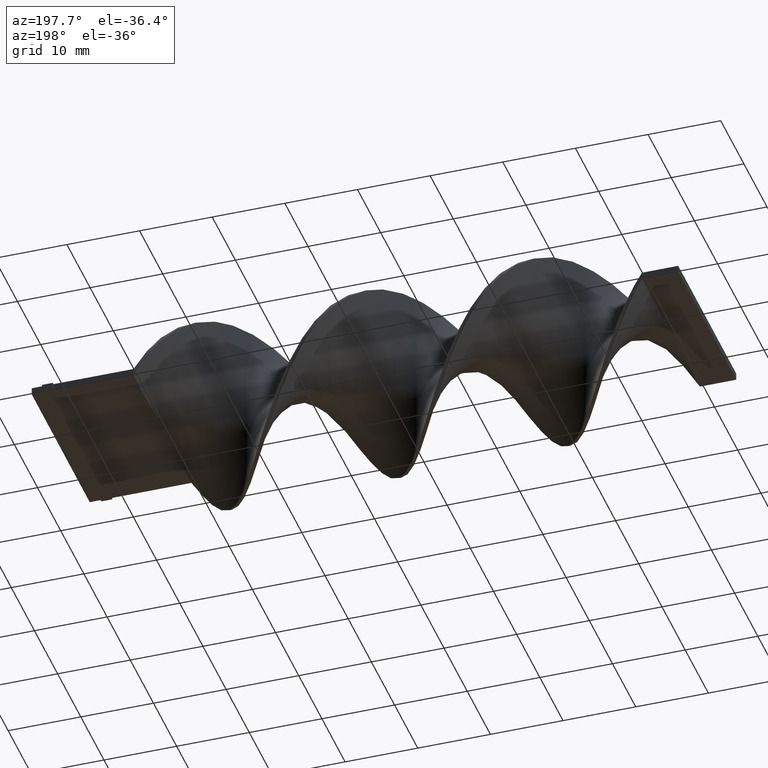
[diagram: clean part render]
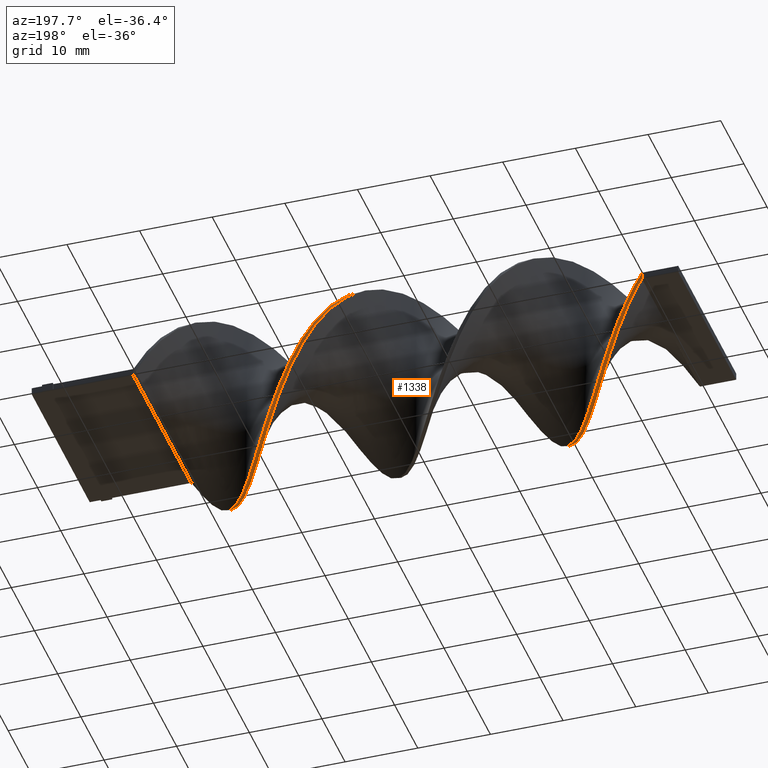
[diagram: same view with one face highlighted and labeled with its STEP entity id]
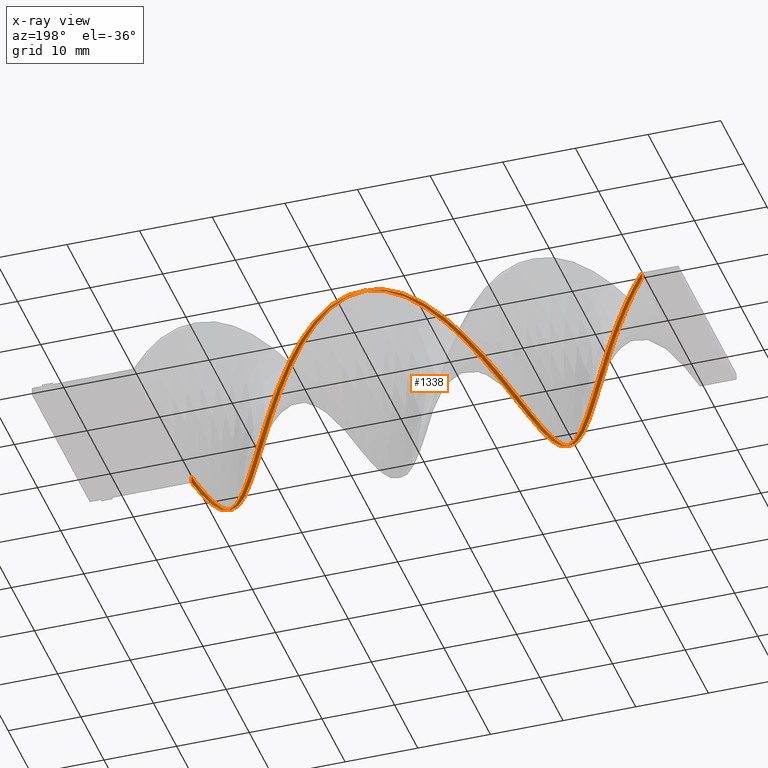
[diagram: x-ray of the same camera — body ghosted, the highlighted face saturated]
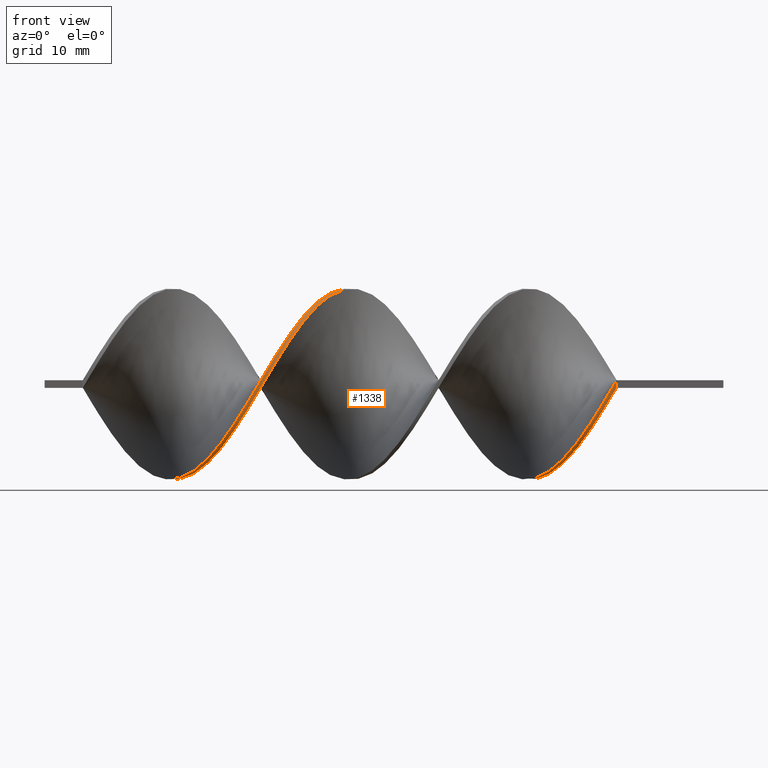
[diagram: same view with one face highlighted and labeled with its STEP entity id]
A machine part, auxiliary view. The second image highlights one B-rep face of the part: STEP entity #1338.
The next image is the same camera in x-ray: the body ghosted, the highlighted face saturated — about 9% of this face is hidden behind the body in this view.
A second angle (front view) of the same face is appended — the face is thin or edge-on in the first view.
In plain terms, the highlighted face is a freeform B-spline surface patch.
Its self-contained STEP definition (entity closure, byte-faithful):
#5 = CARTESIAN_POINT ( 'NONE',  ( -13.99999999999999467, -12.50000000000000178, -0.5000000000000000000 ) ) ;
#9 = CARTESIAN_POINT ( 'NONE',  ( -52.58974358974357699, -5.405725462660107006, 11.38356088229227048 ) ) ;
#18 = CARTESIAN_POINT ( 'NONE',  ( -18.48717948717948545, -10.64897370504629137, -6.738448275956367972 ) ) ;
#26 = CARTESIAN_POINT ( 'NONE',  ( -21.17948717948717530, -7.512301267086279211, -10.00326595030512777 ) ) ;
#35 = CARTESIAN_POINT ( 'NONE',  ( -66.94871794871792758, -8.726917657472039735, -9.091107431892410773 ) ) ;
#40 = CARTESIAN_POINT ( 'NONE',  ( -21.17948717948717530, -6.689317401192623080, -10.57133069703628259 ) ) ;
#43 = CARTESIAN_POINT ( 'NONE',  ( -49.00000000000000711, 0.5036723384328417596, 12.59180846082103855 ) ) ;
#49 = CARTESIAN_POINT ( 'NONE',  ( -24.76923076923076650, -1.010354066142515217, -12.46912926635333640 ) ) ;
#51 = CARTESIAN_POINT ( 'NONE',  ( -75.92307692307691980, 5.405725462660111447, -11.38356088229226870 ) ) ;
#56 = CARTESIAN_POINT ( 'NONE',  ( -55.28205128205128460, -9.687945681259160224, 7.914777853924392481 ) ) ;
#58 = CARTESIAN_POINT ( 'NONE',  ( -83.10256410256410220, 12.43928900838886875, -2.017774790278262564 ) ) ;
#63 = CARTESIAN_POINT ( 'NONE',  ( -22.07692307692307665, -5.405725462660116776, -11.38356088229226870 ) ) ;
#64 = CARTESIAN_POINT ( 'NONE',  ( -49.00000000000000000, -0.5036723384328410935, 12.59180846082103855 ) ) ;
#66 = CARTESIAN_POINT ( 'NONE',  ( -73.23076923076922640, 1.010354066142507001, -12.46912926635333640 ) ) ;
#67 = CARTESIAN_POINT ( 'NONE',  ( -57.07692307692306599, -11.30056190668700644, 5.366311637720509786 ) ) ;
#74 = CARTESIAN_POINT ( 'NONE',  ( -34.64102564102564230, 11.95215010832772684, -3.994174999484638722 ) ) ;
#83 = CARTESIAN_POINT ( 'NONE',  ( -60.66666666666665719, -12.50000000000000178, -0.5000000000000000000 ) ) ;
#90 = CARTESIAN_POINT ( 'NONE',  ( -46.30769230769229949, 4.900069209374405155, 11.51040059004641591 ) ) ;
#91 = CARTESIAN_POINT ( 'NONE',  ( -49.89743589743589069, -2.003062940240558198, 12.34859258609801635 ) ) ;
#96 = CARTESIAN_POINT ( 'NONE',  ( -67.84615384615385381, -7.512301267086279211, -10.00326595030512777 ) ) ;
#102 = CARTESIAN_POINT ( 'NONE',  ( -65.15384615384614619, -10.07673670631161045, -7.567476692410683548 ) ) ;
#106 = CARTESIAN_POINT ( 'NONE',  ( -43.61538461538461320, 8.726917657472037959, 9.091107431892408997 ) ) ;
#111 = CARTESIAN_POINT ( 'NONE',  ( -23.87179487179487225, -3.502453542048291624, -12.10537671137499238 ) ) ;
#124 = CARTESIAN_POINT ( 'NONE',  ( -13.99999999999999467, -12.50000000000000178, -0.5000000000000000000 ) ) ;
#126 = CARTESIAN_POINT ( 'NONE',  ( -47.20512820512820440, 3.502453542048287627, 12.10537671137499238 ) ) ;
#136 = CARTESIAN_POINT ( 'NONE',  ( -82.20512820512820440, 12.25643054996942816, -2.505974894881450421 ) ) ;
#142 = CARTESIAN_POINT ( 'NONE',  ( -34.64102564102564230, 11.59494076297487197, -4.936058634336743189 ) ) ;
#154 = CARTESIAN_POINT ( 'NONE',  ( -38.23076923076921929, 12.56071099161113303, 1.017774790278253905 ) ) ;
#159 = CARTESIAN_POINT ( 'NONE',  ( -36.43589743589743080, 12.56071099161113125, -1.017774790278262564 ) ) ;
#161 = CARTESIAN_POINT ( 'NONE',  ( -44.51282051282050389, 7.512301267086275658, 10.00326595030512777 ) ) ;
#164 = CARTESIAN_POINT ( 'NONE',  ( -17.58974358974358410, -10.83583873464324299, -6.251767663373711592 ) ) ;
#167 = CARTESIAN_POINT ( 'NONE',  ( -37.33333333333332860, 12.49999999999999822, 0.4999999999999985012 ) ) ;
#169 = LINE ( 'NONE', #183, #856 ) ;
#174 = CARTESIAN_POINT ( 'NONE',  ( -48.10256410256409509, 1.010354066142515661, 12.46912926635333818 ) ) ;
#178 = CARTESIAN_POINT ( 'NONE',  ( -18.48717948717948545, -10.07673670631161045, -7.567476692410683548 ) ) ;
#180 = CARTESIAN_POINT ( 'NONE',  ( -70.53846153846153300, -2.524380470717866309, -12.34645007188563959 ) ) ;
#183 = CARTESIAN_POINT ( 'NONE',  ( -13.99999999999999467, -12.50000000000000178, 0.5000000000000000000 ) ) ;
#184 = CARTESIAN_POINT ( 'NONE',  ( -78.61538461538461320, 9.687945681259156672, -7.914777853924392481 ) ) ;
#186 = CARTESIAN_POINT ( 'NONE',  ( -30.15384615384614975, 7.512301267086272993, -10.00326595030512955 ) ) ;
#194 = CARTESIAN_POINT ( 'NONE',  ( -45.41025641025640880, 5.405725462660119440, 11.38356088229226515 ) ) ;
#203 = VERTEX_POINT ( 'NONE', #1112 ) ;
#204 = CARTESIAN_POINT ( 'NONE',  ( -77.71794871794872961, 8.726917657472030854, -9.091107431892414326 ) ) ;
#208 = CARTESIAN_POINT ( 'NONE',  ( -48.10256410256409509, 2.003062940240569745, 12.34859258609801280 ) ) ;
#211 = CARTESIAN_POINT ( 'NONE',  ( -46.30769230769229949, 3.965052966688989322, 11.86500547708895148 ) ) ;
#218 = CARTESIAN_POINT ( 'NONE',  ( -29.25641025641025550, 5.405725462660110558, -11.38356088229227048 ) ) ;
#222 = CARTESIAN_POINT ( 'NONE',  ( -33.74358974358973740, 11.30056190668700644, -5.366311637720503569 ) ) ;
#225 = CARTESIAN_POINT ( 'NONE',  ( -79.51282051282051100, 10.64897370504628604, -6.738448275956368860 ) ) ;
#228 = CARTESIAN_POINT ( 'NONE',  ( -37.33333333333332860, 12.49999999999999822, -0.5000000000000015543 ) ) ;
#235 = CARTESIAN_POINT ( 'NONE',  ( -53.48717948717948900, -6.689317401192618640, 10.57133069703628614 ) ) ;
#242 = CARTESIAN_POINT ( 'NONE',  ( -49.89743589743589069, -1.010354066142503893, 12.46912926635333818 ) ) ;
#249 = CARTESIAN_POINT ( 'NONE',  ( -41.82051282051281760, 10.64897370504628960, 6.738448275956367084 ) ) ;
#257 = CARTESIAN_POINT ( 'NONE',  ( -84.00000000000000000, 12.49999999999999822, 0.4999999999999985012 ) ) ;
#266 = CARTESIAN_POINT ( 'NONE',  ( -22.07692307692307665, -6.297684876700518686, -10.91542446871784477 ) ) ;
#272 = CARTESIAN_POINT ( 'NONE',  ( -83.10256410256410220, 12.43928900838886875, -2.017774790278262564 ) ) ;
#274 = CARTESIAN_POINT ( 'NONE',  ( -43.61538461538461320, 8.726917657472037959, 9.091107431892407220 ) ) ;
#278 = CARTESIAN_POINT ( 'NONE',  ( -57.07692307692306599, -11.30056190668700644, 5.366311637720509786 ) ) ;
#280 = CARTESIAN_POINT ( 'NONE',  ( -75.92307692307690559, 5.405725462660110558, -11.38356088229227048 ) ) ;
#282 = CARTESIAN_POINT ( 'NONE',  ( -36.43589743589743080, 12.43928900838886875, -2.017774790278262564 ) ) ;
#286 = CARTESIAN_POINT ( 'NONE',  ( -22.97435897435896734, -3.965052966688991098, -11.86500547708895148 ) ) ;
#288 = CARTESIAN_POINT ( 'NONE',  ( -82.20512820512820440, 12.01711488568186859, -3.476916712307501989 ) ) ;
#294 = CARTESIAN_POINT ( 'NONE',  ( -40.02564102564101489, 11.59494076297487375, 4.936058634336734308 ) ) ;
#297 = CARTESIAN_POINT ( 'NONE',  ( -69.64102564102563520, -4.900069209374406931, -11.51040059004641591 ) ) ;
#304 = CARTESIAN_POINT ( 'NONE',  ( -69.64102564102563520, -3.965052966688991098, -11.86500547708895148 ) ) ;
#307 = CARTESIAN_POINT ( 'NONE',  ( -74.12820512820512420, 2.524380470717861424, -12.34645007188564136 ) ) ;
#310 = CARTESIAN_POINT ( 'NONE',  ( -38.23076923076921929, 12.43928900838886875, 2.017774790278253683 ) ) ;
#315 = CARTESIAN_POINT ( 'NONE',  ( -57.97435897435897090, -11.95215010832773039, 3.994174999484640498 ) ) ;
#321 = CARTESIAN_POINT ( 'NONE',  ( -72.33333333333332860, 0.5036723384328388731, -12.59180846082103855 ) ) ;
#332 = CARTESIAN_POINT ( 'NONE',  ( -62.46153846153845990, -12.01711488568187214, -3.476916712307497548 ) ) ;
#339 = CARTESIAN_POINT ( 'NONE',  ( -28.35897435897435059, 3.965052966688984437, -11.86500547708895326 ) ) ;
#342 = CARTESIAN_POINT ( 'NONE',  ( -71.43589743589743080, -1.010354066142515217, -12.46912926635333640 ) ) ;
#343 = EDGE_CURVE ( 'NONE', #203, #1343, #398, .T. ) ;
#347 = CARTESIAN_POINT ( 'NONE',  ( -71.43589743589743080, -2.003062940240569301, -12.34859258609801458 ) ) ;
#351 = CARTESIAN_POINT ( 'NONE',  ( -52.58974358974357699, -6.297684876700514245, 10.91542446871784477 ) ) ;
#358 = CARTESIAN_POINT ( 'NONE',  ( -31.94871794871793824, 9.024823023018361923, -8.663288602095494895 ) ) ;
#362 = CARTESIAN_POINT ( 'NONE',  ( -39.12820512820512420, 12.25643054996942816, 2.505974894881441539 ) ) ;
#369 = CARTESIAN_POINT ( 'NONE',  ( -21.17948717948717530, -7.512301267086279211, -10.00326595030512777 ) ) ;
#375 = CARTESIAN_POINT ( 'NONE',  ( -51.69230769230769340, -3.965052966688988434, 11.86500547708895326 ) ) ;
#389 = CARTESIAN_POINT ( 'NONE',  ( -80.41025641025640880, 10.83583873464323766, -6.251767663373713368 ) ) ;
#391 = CARTESIAN_POINT ( 'NONE',  ( -58.87179487179486159, -12.01711488568187036, 3.476916712307509094 ) ) ;
#398 = B_SPLINE_CURVE_WITH_KNOTS ( 'NONE', 3,
 ( #545, #884, #1390, #1156 ),
 .UNSPECIFIED., .F., .F.,
 ( 4, 4 ),
 ( 0.000000000000000000, 1.000000000000000000 ),
 .UNSPECIFIED. ) ;
#403 = CARTESIAN_POINT ( 'NONE',  ( -30.15384615384614975, 6.689317401192616863, -10.57133069703628436 ) ) ;
#411 = CARTESIAN_POINT ( 'NONE',  ( -50.79487179487178139, -2.524380470717860536, 12.34645007188564136 ) ) ;
#415 = CARTESIAN_POINT ( 'NONE',  ( -39.12820512820512420, 12.01711488568187214, 3.476916712307494439 ) ) ;
#418 = CARTESIAN_POINT ( 'NONE',  ( -26.56410256410255855, 1.010354066142507001, -12.46912926635333640 ) ) ;
#427 = CARTESIAN_POINT ( 'NONE',  ( -67.84615384615385381, -6.689317401192623080, -10.57133069703628259 ) ) ;
#433 = ORIENTED_EDGE ( 'NONE', *, *, #1361, .F. ) ;
#437 = CARTESIAN_POINT ( 'NONE',  ( -61.56410256410256920, -12.43928900838887230, -2.017774790278256791 ) ) ;
#442 = CARTESIAN_POINT ( 'NONE',  ( -20.28205128205128105, -7.972909339725130273, -9.759100511780298248 ) ) ;
#450 = CARTESIAN_POINT ( 'NONE',  ( -46.30769230769229949, 3.965052966688989322, 11.86500547708895148 ) ) ;
#455 = CARTESIAN_POINT ( 'NONE',  ( -37.33333333333332860, 12.49999999999999822, 0.4999999999999985012 ) ) ;
#465 = CARTESIAN_POINT ( 'NONE',  ( -57.97435897435897090, -11.95215010832773039, 3.994174999484640498 ) ) ;
#470 = CARTESIAN_POINT ( 'NONE',  ( -66.94871794871794179, -8.726917657472039735, -9.091107431892412549 ) ) ;
#474 = CARTESIAN_POINT ( 'NONE',  ( -31.05128205128205465, 8.726917657472030854, -9.091107431892414326 ) ) ;
#479 = CARTESIAN_POINT ( 'NONE',  ( -47.20512820512820440, 3.502453542048287183, 12.10537671137499238 ) ) ;
#481 = ORIENTED_EDGE ( 'NONE', *, *, #343, .F. ) ;
#484 = CARTESIAN_POINT ( 'NONE',  ( -54.38461538461537970, -8.726917657472029077, 9.091107431892417878 ) ) ;
#489 = CARTESIAN_POINT ( 'NONE',  ( -57.07692307692306599, -10.83583873464323766, 6.251767663373719586 ) ) ;
#492 = CARTESIAN_POINT ( 'NONE',  ( -59.76923076923077360, -12.56071099161113658, 1.017774790278264119 ) ) ;
#495 = CARTESIAN_POINT ( 'NONE',  ( -17.58974358974358410, -11.30056190668700999, -5.366311637720501793 ) ) ;
#496 = ORIENTED_EDGE ( 'NONE', *, *, #1543, .T. ) ;
#501 = CARTESIAN_POINT ( 'NONE',  ( -61.56410256410256920, -12.56071099161113480, -1.017774790278256569 ) ) ;
#512 = CARTESIAN_POINT ( 'NONE',  ( -14.89743589743589247, -12.43928900838887230, -2.017774790278256791 ) ) ;
#515 = CARTESIAN_POINT ( 'NONE',  ( -56.17948717948717530, -10.07673670631160867, 7.567476692410687100 ) ) ;
#524 = CARTESIAN_POINT ( 'NONE',  ( -63.35897435897434349, -11.95215010832773217, -3.994174999484634281 ) ) ;
#533 = CARTESIAN_POINT ( 'NONE',  ( -25.66666666666666785, -0.5036723384328442021, -12.59180846082103855 ) ) ;
#537 = CARTESIAN_POINT ( 'NONE',  ( -56.17948717948717530, -10.64897370504628960, 6.738448275956370637 ) ) ;
#542 = CARTESIAN_POINT ( 'NONE',  ( -40.02564102564101489, 11.95215010832772862, 3.994174999484630284 ) ) ;
#545 = CARTESIAN_POINT ( 'NONE',  ( -84.00000000000000000, 12.49999999999999822, 0.4999999999999985012 ) ) ;
#546 = CARTESIAN_POINT ( 'NONE',  ( -72.33333333333332860, 0.5036723384328388731, -12.59180846082103855 ) ) ;
#550 = CARTESIAN_POINT ( 'NONE',  ( -31.05128205128205465, 7.972909339725120503, -9.759100511780301801 ) ) ;
#554 = CARTESIAN_POINT ( 'NONE',  ( -29.25641025641025550, 6.297684876700515133, -10.91542446871784655 ) ) ;
#560 = CARTESIAN_POINT ( 'NONE',  ( -66.05128205128204399, -9.024823023018369028, -8.663288602095489566 ) ) ;
#562 = CARTESIAN_POINT ( 'NONE',  ( -84.00000000000000000, 12.49999999999999822, -0.5000000000000015543 ) ) ;
#566 = CARTESIAN_POINT ( 'NONE',  ( -22.97435897435896734, -3.965052966688991098, -11.86500547708895148 ) ) ;
#569 = CARTESIAN_POINT ( 'NONE',  ( -25.66666666666666785, 0.5036723384328388731, -12.59180846082103855 ) ) ;
#575 = CARTESIAN_POINT ( 'NONE',  ( -40.92307692307691980, 10.83583873464323943, 6.251767663373710704 ) ) ;
#582 = CARTESIAN_POINT ( 'NONE',  ( -39.12820512820512420, 12.01711488568187214, 3.476916712307494439 ) ) ;
#587 = CARTESIAN_POINT ( 'NONE',  ( -56.17948717948717530, -10.07673670631160689, 7.567476692410687100 ) ) ;
#590 = CARTESIAN_POINT ( 'NONE',  ( -64.25641025641024839, -10.83583873464324299, -6.251767663373711592 ) ) ;
#593 = CARTESIAN_POINT ( 'NONE',  ( -81.30769230769232081, 11.95215010832772684, -3.994174999484638722 ) ) ;
#596 = CARTESIAN_POINT ( 'NONE',  ( -70.53846153846153300, -3.502453542048291624, -12.10537671137499238 ) ) ;
#599 = CARTESIAN_POINT ( 'NONE',  ( -27.46153846153845990, 3.502453542048287183, -12.10537671137499238 ) ) ;
#605 = CARTESIAN_POINT ( 'NONE',  ( -68.74358974358973740, -6.297684876700517798, -10.91542446871784655 ) ) ;
#608 = CARTESIAN_POINT ( 'NONE',  ( -49.00000000000000711, -0.5036723384328410935, 12.59180846082103855 ) ) ;
#612 = CARTESIAN_POINT ( 'NONE',  ( -40.92307692307691980, 11.30056190668700822, 5.366311637720500904 ) ) ;
#619 = CARTESIAN_POINT ( 'NONE',  ( -35.53846153846153300, 12.01711488568186859, -3.476916712307501989 ) ) ;
#627 = ORIENTED_EDGE ( 'NONE', *, *, #1241, .F. ) ;
#636 = CARTESIAN_POINT ( 'NONE',  ( -28.35897435897435059, 3.965052966688984437, -11.86500547708895326 ) ) ;
#644 = CARTESIAN_POINT ( 'NONE',  ( -17.58974358974358410, -11.30056190668700999, -5.366311637720501793 ) ) ;
#652 = CARTESIAN_POINT ( 'NONE',  ( -40.92307692307691980, 11.30056190668700822, 5.366311637720500904 ) ) ;
#657 = CARTESIAN_POINT ( 'NONE',  ( -13.99999999999999467, -12.50000000000000178, 0.5000000000000000000 ) ) ;
#658 = CARTESIAN_POINT ( 'NONE',  ( -79.51282051282051100, 10.07673670631160334, -7.567476692410685324 ) ) ;
#660 = CARTESIAN_POINT ( 'NONE',  ( -61.56410256410256920, -12.56071099161113658, -1.017774790278256791 ) ) ;
#666 = CARTESIAN_POINT ( 'NONE',  ( -64.25641025641024839, -10.83583873464324299, -6.251767663373711592 ) ) ;
#669 = CARTESIAN_POINT ( 'NONE',  ( -42.71794871794871540, 9.687945681259162001, 7.914777853924385376 ) ) ;
#671 = CARTESIAN_POINT ( 'NONE',  ( -19.38461538461537970, -9.024823023018369028, -8.663288602095489566 ) ) ;
#673 = CARTESIAN_POINT ( 'NONE',  ( -75.92307692307690559, 6.297684876700515133, -10.91542446871784655 ) ) ;
#675 = DIRECTION ( 'NONE',  ( -0.000000000000000000, -0.000000000000000000, -1.000000000000000000 ) ) ;
#679 = CARTESIAN_POINT ( 'NONE',  ( -59.76923076923076650, -12.56071099161113480, 1.017774790278263897 ) ) ;
#685 = CARTESIAN_POINT ( 'NONE',  ( -20.28205128205128105, -7.972909339725129385, -9.759100511780298248 ) ) ;
#688 = CARTESIAN_POINT ( 'NONE',  ( -23.87179487179487225, -2.524380470717866309, -12.34645007188563959 ) ) ;
#692 = CARTESIAN_POINT ( 'NONE',  ( -47.20512820512820440, 2.524380470717861868, 12.34645007188564136 ) ) ;
#693 = CARTESIAN_POINT ( 'NONE',  ( -31.94871794871793824, 9.687945681259156672, -7.914777853924392481 ) ) ;
#697 = CARTESIAN_POINT ( 'NONE',  ( -76.82051282051281760, 7.512301267086272993, -10.00326595030512955 ) ) ;
#707 = CARTESIAN_POINT ( 'NONE',  ( -81.30769230769233502, 11.95215010832772684, -3.994174999484638722 ) ) ;
#711 = CARTESIAN_POINT ( 'NONE',  ( -49.00000000000000000, 0.5036723384328417596, 12.59180846082103855 ) ) ;
#714 = CARTESIAN_POINT ( 'NONE',  ( -31.94871794871793824, 9.687945681259156672, -7.914777853924392481 ) ) ;
#718 = CARTESIAN_POINT ( 'NONE',  ( -36.43589743589743080, 12.43928900838886875, -2.017774790278262564 ) ) ;
#721 = CARTESIAN_POINT ( 'NONE',  ( -58.87179487179486159, -12.25643054996942993, 2.505974894881457526 ) ) ;
#728 = CARTESIAN_POINT ( 'NONE',  ( -38.23076923076921929, 12.56071099161113125, 1.017774790278253905 ) ) ;
#733 = CARTESIAN_POINT ( 'NONE',  ( -59.76923076923076650, -12.43928900838887230, 2.017774790278263897 ) ) ;
#740 = CARTESIAN_POINT ( 'NONE',  ( -31.05128205128205110, 7.972909339725121391, -9.759100511780301801 ) ) ;
#753 = CARTESIAN_POINT ( 'NONE',  ( -54.38461538461537970, -7.972909339725118727, 9.759100511780305354 ) ) ;
#760 = CARTESIAN_POINT ( 'NONE',  ( -75.02564102564102200, 3.965052966688984437, -11.86500547708895326 ) ) ;
#762 = CARTESIAN_POINT ( 'NONE',  ( -13.99999999999999467, -12.50000000000000178, 0.5000000000000000000 ) ) ;
#771 = CARTESIAN_POINT ( 'NONE',  ( -60.66666666666665719, -12.50000000000000178, 0.5000000000000000000 ) ) ;
#780 = CARTESIAN_POINT ( 'NONE',  ( -29.25641025641025550, 5.405725462660111447, -11.38356088229226870 ) ) ;
#786 = CARTESIAN_POINT ( 'NONE',  ( -51.69230769230769340, -4.900069209374404267, 11.51040059004641769 ) ) ;
#789 = CARTESIAN_POINT ( 'NONE',  ( -33.74358974358973740, 10.83583873464323766, -6.251767663373713368 ) ) ;
#794 = CARTESIAN_POINT ( 'NONE',  ( -32.84615384615384670, 10.64897370504628604, -6.738448275956368860 ) ) ;
#800 = CARTESIAN_POINT ( 'NONE',  ( -54.38461538461537970, -8.726917657472029077, 9.091107431892417878 ) ) ;
#810 = CARTESIAN_POINT ( 'NONE',  ( -40.92307692307691980, 10.83583873464323943, 6.251767663373710704 ) ) ;
#812 = CARTESIAN_POINT ( 'NONE',  ( -71.43589743589743080, -2.003062940240569301, -12.34859258609801458 ) ) ;
#814 = CARTESIAN_POINT ( 'NONE',  ( -74.12820512820512420, 3.502453542048287183, -12.10537671137499238 ) ) ;
#815 = CARTESIAN_POINT ( 'NONE',  ( -66.94871794871794179, -7.972909339725130273, -9.759100511780298248 ) ) ;
#821 = CARTESIAN_POINT ( 'NONE',  ( -73.23076923076922640, 2.003062940240561307, -12.34859258609801458 ) ) ;
#833 = CARTESIAN_POINT ( 'NONE',  ( -75.92307692307691980, 6.297684876700515133, -10.91542446871784477 ) ) ;
#839 = CARTESIAN_POINT ( 'NONE',  ( -69.64102564102563520, -4.900069209374406931, -11.51040059004641591 ) ) ;
#841 = CARTESIAN_POINT ( 'NONE',  ( -25.66666666666666785, 0.5036723384328388731, -12.59180846082103855 ) ) ;
#844 = CARTESIAN_POINT ( 'NONE',  ( -22.97435897435896734, -4.900069209374406931, -11.51040059004641591 ) ) ;
#845 = CARTESIAN_POINT ( 'NONE',  ( -26.56410256410255855, 2.003062940240561307, -12.34859258609801458 ) ) ;
#852 = CARTESIAN_POINT ( 'NONE',  ( -33.74358974358973740, 10.83583873464323766, -6.251767663373713368 ) ) ;
#855 = CARTESIAN_POINT ( 'NONE',  ( -51.69230769230769340, -3.965052966688988434, 11.86500547708895326 ) ) ;
#856 = VECTOR ( 'NONE', #675, 1000.000000000000000 ) ;
#860 = CARTESIAN_POINT ( 'NONE',  ( -25.66666666666666785, -0.5036723384328442021, -12.59180846082103855 ) ) ;
#865 = CARTESIAN_POINT ( 'NONE',  ( -20.28205128205128105, -8.726917657472039735, -9.091107431892412549 ) ) ;
#877 = CARTESIAN_POINT ( 'NONE',  ( -18.48717948717948545, -10.07673670631160867, -7.567476692410683548 ) ) ;
#879 = CARTESIAN_POINT ( 'NONE',  ( -82.20512820512820440, 12.01711488568186859, -3.476916712307501989 ) ) ;
#881 = CARTESIAN_POINT ( 'NONE',  ( -46.30769230769229949, 4.900069209374405155, 11.51040059004641591 ) ) ;
#884 = CARTESIAN_POINT ( 'NONE',  ( -84.00000000000000000, 12.49999999999999822, 0.1666666666666651586 ) ) ;
#890 = CARTESIAN_POINT ( 'NONE',  ( -31.94871794871793824, 9.024823023018361923, -8.663288602095494895 ) ) ;
#897 = CARTESIAN_POINT ( 'NONE',  ( -22.97435897435896734, -4.900069209374406931, -11.51040059004641591 ) ) ;
#902 = CARTESIAN_POINT ( 'NONE',  ( -42.71794871794871540, 9.024823023018367252, 8.663288602095487789 ) ) ;
#906 = CARTESIAN_POINT ( 'NONE',  ( -16.69230769230769340, -11.95215010832773217, -3.994174999484634281 ) ) ;
#912 = CARTESIAN_POINT ( 'NONE',  ( -74.12820512820510999, 3.502453542048286739, -12.10537671137499238 ) ) ;
#914 = EDGE_LOOP ( 'NONE', ( #433, #496, #481, #627 ) ) ;
#916 = CARTESIAN_POINT ( 'NONE',  ( -15.79487179487178850, -12.25643054996943171, -2.505974894881445980 ) ) ;
#921 = CARTESIAN_POINT ( 'NONE',  ( -62.46153846153845990, -12.01711488568187214, -3.476916712307497548 ) ) ;
#928 = CARTESIAN_POINT ( 'NONE',  ( -19.38461538461537970, -9.024823023018369028, -8.663288602095489566 ) ) ;
#933 = FACE_OUTER_BOUND ( 'NONE', #914, .T. ) ;
#936 = CARTESIAN_POINT ( 'NONE',  ( -49.89743589743589069, -2.003062940240558198, 12.34859258609801635 ) ) ;
#941 = CARTESIAN_POINT ( 'NONE',  ( -67.84615384615385381, -6.689317401192623080, -10.57133069703628259 ) ) ;
#945 = CARTESIAN_POINT ( 'NONE',  ( -13.99999999999999467, -12.50000000000000178, 0.5000000000000000000 ) ) ;
#951 = CARTESIAN_POINT ( 'NONE',  ( -66.05128205128204399, -9.024823023018369028, -8.663288602095489566 ) ) ;
#953 = CARTESIAN_POINT ( 'NONE',  ( -82.20512820512820440, 12.25643054996942816, -2.505974894881450421 ) ) ;
#956 = CARTESIAN_POINT ( 'NONE',  ( -18.48717948717948545, -10.64897370504629137, -6.738448275956367084 ) ) ;
#958 = CARTESIAN_POINT ( 'NONE',  ( -48.10256410256409509, 1.010354066142515661, 12.46912926635333818 ) ) ;
#966 = CARTESIAN_POINT ( 'NONE',  ( -54.38461538461537970, -7.972909339725119615, 9.759100511780305354 ) ) ;
#968 = CARTESIAN_POINT ( 'NONE',  ( -55.28205128205128460, -9.687945681259160224, 7.914777853924392481 ) ) ;
#971 = CARTESIAN_POINT ( 'NONE',  ( -80.41025641025640880, 11.30056190668700644, -5.366311637720503569 ) ) ;
#974 = CARTESIAN_POINT ( 'NONE',  ( -72.33333333333332860, -0.5036723384328442021, -12.59180846082103855 ) ) ;
#977 = CARTESIAN_POINT ( 'NONE',  ( -63.35897435897434349, -11.59494076297487730, -4.936058634336738749 ) ) ;
#979 = CARTESIAN_POINT ( 'NONE',  ( -76.82051282051281760, 7.512301267086272993, -10.00326595030512955 ) ) ;
#982 = CARTESIAN_POINT ( 'NONE',  ( -24.76923076923076650, -2.003062940240569301, -12.34859258609801458 ) ) ;
#985 = VERTEX_POINT ( 'NONE', #657 ) ;
#991 = CARTESIAN_POINT ( 'NONE',  ( -62.46153846153845990, -12.25643054996943171, -2.505974894881445980 ) ) ;
#993 = VERTEX_POINT ( 'NONE', #124 ) ;
#1001 = CARTESIAN_POINT ( 'NONE',  ( -16.69230769230768985, -11.59494076297487730, -4.936058634336738749 ) ) ;
#1003 = CARTESIAN_POINT ( 'NONE',  ( -27.46153846153845990, 2.524380470717861424, -12.34645007188564136 ) ) ;
#1012 = CARTESIAN_POINT ( 'NONE',  ( -57.97435897435897090, -11.59494076297487553, 4.936058634336744966 ) ) ;
#1022 = CARTESIAN_POINT ( 'NONE',  ( -23.87179487179487225, -3.502453542048291624, -12.10537671137499238 ) ) ;
#1028 = CARTESIAN_POINT ( 'NONE',  ( -58.87179487179486159, -12.25643054996942993, 2.505974894881457526 ) ) ;
#1030 = CARTESIAN_POINT ( 'NONE',  ( -76.82051282051281760, 6.689317401192616863, -10.57133069703628436 ) ) ;
#1033 = CARTESIAN_POINT ( 'NONE',  ( -62.46153846153845990, -12.25643054996943171, -2.505974894881445980 ) ) ;
#1036 = CARTESIAN_POINT ( 'NONE',  ( -13.99999999999999467, -12.50000000000000178, -0.5000000000000000000 ) ) ;
#1038 = CARTESIAN_POINT ( 'NONE',  ( -28.35897435897435059, 4.900069209374399826, -11.51040059004641769 ) ) ;
#1043 = CARTESIAN_POINT ( 'NONE',  ( -80.41025641025640880, 10.83583873464323766, -6.251767663373713368 ) ) ;
#1049 = CARTESIAN_POINT ( 'NONE',  ( -43.61538461538461320, 7.972909339725128497, 9.759100511780294696 ) ) ;
#1057 = CARTESIAN_POINT ( 'NONE',  ( -45.41025641025640880, 5.405725462660118552, 11.38356088229226515 ) ) ;
#1062 = CARTESIAN_POINT ( 'NONE',  ( -84.00000000000000000, 12.49999999999999822, -0.5000000000000015543 ) ) ;
#1068 = CARTESIAN_POINT ( 'NONE',  ( -27.46153846153845990, 3.502453542048286739, -12.10537671137499238 ) ) ;
#1074 = CARTESIAN_POINT ( 'NONE',  ( -32.84615384615384670, 10.64897370504628604, -6.738448275956369748 ) ) ;
#1083 = CARTESIAN_POINT ( 'NONE',  ( -44.51282051282050389, 6.689317401192619528, 10.57133069703628259 ) ) ;
#1089 = CARTESIAN_POINT ( 'NONE',  ( -41.82051282051281760, 10.64897370504628960, 6.738448275956366196 ) ) ;
#1090 = CARTESIAN_POINT ( 'NONE',  ( -28.35897435897435059, 4.900069209374399826, -11.51040059004641769 ) ) ;
#1093 = CARTESIAN_POINT ( 'NONE',  ( -34.64102564102564230, 11.59494076297487197, -4.936058634336743189 ) ) ;
#1098 = CARTESIAN_POINT ( 'NONE',  ( -41.82051282051281760, 10.07673670631160867, 7.567476692410682659 ) ) ;
#1106 = CARTESIAN_POINT ( 'NONE',  ( -63.35897435897435059, -11.95215010832773217, -3.994174999484634281 ) ) ;
#1109 = CARTESIAN_POINT ( 'NONE',  ( -68.74358974358973740, -5.405725462660116776, -11.38356088229226870 ) ) ;
#1112 = CARTESIAN_POINT ( 'NONE',  ( -84.00000000000000000, 12.49999999999999822, 0.4999999999999985012 ) ) ;
#1114 = CARTESIAN_POINT ( 'NONE',  ( -44.51282051282050389, 7.512301267086275658, 10.00326595030512777 ) ) ;
#1119 = CARTESIAN_POINT ( 'NONE',  ( -60.66666666666665719, -12.50000000000000178, 0.5000000000000000000 ) ) ;
#1127 = CARTESIAN_POINT ( 'NONE',  ( -78.61538461538461320, 9.024823023018361923, -8.663288602095494895 ) ) ;
#1136 = CARTESIAN_POINT ( 'NONE',  ( -20.28205128205128105, -8.726917657472039735, -9.091107431892410773 ) ) ;
#1145 = CARTESIAN_POINT ( 'NONE',  ( -14.89743589743589247, -12.56071099161113658, -1.017774790278256791 ) ) ;
#1149 = CARTESIAN_POINT ( 'NONE',  ( -15.79487179487178850, -12.01711488568187214, -3.476916712307497548 ) ) ;
#1151 = CARTESIAN_POINT ( 'NONE',  ( -45.41025641025640880, 6.297684876700521350, 10.91542446871784122 ) ) ;
#1156 = CARTESIAN_POINT ( 'NONE',  ( -84.00000000000000000, 12.49999999999999822, -0.5000000000000015543 ) ) ;
#1160 = CARTESIAN_POINT ( 'NONE',  ( -66.05128205128204399, -9.687945681259163777, -7.914777853924387152 ) ) ;
#1167 = CARTESIAN_POINT ( 'NONE',  ( -63.35897435897435059, -11.59494076297487730, -4.936058634336738749 ) ) ;
#1169 = CARTESIAN_POINT ( 'NONE',  ( -48.10256410256409509, 2.003062940240569745, 12.34859258609801280 ) ) ;
#1175 = CARTESIAN_POINT ( 'NONE',  ( -31.05128205128205110, 8.726917657472030854, -9.091107431892416102 ) ) ;
#1179 = CARTESIAN_POINT ( 'NONE',  ( -79.51282051282051100, 10.07673670631160512, -7.567476692410685324 ) ) ;
#1184 = CARTESIAN_POINT ( 'NONE',  ( -71.43589743589743080, -1.010354066142515217, -12.46912926635333640 ) ) ;
#1186 = CARTESIAN_POINT ( 'NONE',  ( -72.33333333333332860, -0.5036723384328442021, -12.59180846082103855 ) ) ;
#1189 = CARTESIAN_POINT ( 'NONE',  ( -21.17948717948717530, -6.689317401192623080, -10.57133069703628259 ) ) ;
#1192 = CARTESIAN_POINT ( 'NONE',  ( -38.23076923076921929, 12.43928900838886875, 2.017774790278253683 ) ) ;
#1198 = CARTESIAN_POINT ( 'NONE',  ( -50.79487179487178139, -3.502453542048286295, 12.10537671137499238 ) ) ;
#1200 = CARTESIAN_POINT ( 'NONE',  ( -53.48717948717948900, -7.512301267086274770, 10.00326595030513133 ) ) ;
#1204 = CARTESIAN_POINT ( 'NONE',  ( -80.41025641025640880, 11.30056190668700644, -5.366311637720503569 ) ) ;
#1211 = CARTESIAN_POINT ( 'NONE',  ( -79.51282051282051100, 10.64897370504628604, -6.738448275956369748 ) ) ;
#1217 = CARTESIAN_POINT ( 'NONE',  ( -42.71794871794871540, 9.687945681259162001, 7.914777853924385376 ) ) ;
#1219 = CARTESIAN_POINT ( 'NONE',  ( -43.61538461538461320, 7.972909339725127609, 9.759100511780294696 ) ) ;
#1225 = CARTESIAN_POINT ( 'NONE',  ( -65.15384615384614619, -10.64897370504629137, -6.738448275956367084 ) ) ;
#1230 = CARTESIAN_POINT ( 'NONE',  ( -61.56410256410256920, -12.43928900838887230, -2.017774790278256791 ) ) ;
#1232 = CARTESIAN_POINT ( 'NONE',  ( -78.61538461538461320, 9.687945681259156672, -7.914777853924392481 ) ) ;
#1234 = CARTESIAN_POINT ( 'NONE',  ( -40.02564102564101489, 11.95215010832772862, 3.994174999484630284 ) ) ;
#1239 = CARTESIAN_POINT ( 'NONE',  ( -50.79487179487178139, -2.524380470717860536, 12.34645007188563959 ) ) ;
#1241 = EDGE_CURVE ( 'NONE', #993, #203, #1576, .T. ) ;
#1245 = CARTESIAN_POINT ( 'NONE',  ( -55.28205128205128460, -9.024823023018361923, 8.663288602095494895 ) ) ;
#1258 = CARTESIAN_POINT ( 'NONE',  ( -35.53846153846153300, 12.01711488568186859, -3.476916712307501989 ) ) ;
#1267 = CARTESIAN_POINT ( 'NONE',  ( -19.38461538461537970, -9.687945681259163777, -7.914777853924387152 ) ) ;
#1272 = CARTESIAN_POINT ( 'NONE',  ( -65.15384615384614619, -10.64897370504629137, -6.738448275956367972 ) ) ;
#1284 = CARTESIAN_POINT ( 'NONE',  ( -55.28205128205128460, -9.024823023018361923, 8.663288602095494895 ) ) ;
#1289 = CARTESIAN_POINT ( 'NONE',  ( -60.66666666666665719, -12.50000000000000178, -0.5000000000000000000 ) ) ;
#1291 = CARTESIAN_POINT ( 'NONE',  ( -15.79487179487178850, -12.25643054996943171, -2.505974894881445980 ) ) ;
#1292 = CARTESIAN_POINT ( 'NONE',  ( -16.69230769230769340, -11.59494076297487730, -4.936058634336738749 ) ) ;
#1294 = CARTESIAN_POINT ( 'NONE',  ( -35.53846153846153300, 12.25643054996942816, -2.505974894881450421 ) ) ;
#1296 = CARTESIAN_POINT ( 'NONE',  ( -75.02564102564102200, 3.965052966688984437, -11.86500547708895326 ) ) ;
#1299 = CARTESIAN_POINT ( 'NONE',  ( -22.07692307692307310, -5.405725462660115888, -11.38356088229227048 ) ) ;
#1306 = CARTESIAN_POINT ( 'NONE',  ( -14.89743589743589247, -12.43928900838887230, -2.017774790278256791 ) ) ;
#1308 = CARTESIAN_POINT ( 'NONE',  ( -47.20512820512820440, 2.524380470717861868, 12.34645007188563959 ) ) ;
#1310 = CARTESIAN_POINT ( 'NONE',  ( -81.30769230769233502, 11.59494076297487197, -4.936058634336743189 ) ) ;
#1313 = CARTESIAN_POINT ( 'NONE',  ( -75.02564102564102200, 4.900069209374399826, -11.51040059004641769 ) ) ;
#1314 = CARTESIAN_POINT ( 'NONE',  ( -73.23076923076922640, 2.003062940240561307, -12.34859258609801458 ) ) ;
#1316 = CARTESIAN_POINT ( 'NONE',  ( -78.61538461538461320, 9.024823023018361923, -8.663288602095494895 ) ) ;
#1318 = CARTESIAN_POINT ( 'NONE',  ( -40.02564102564101489, 11.59494076297487375, 4.936058634336734308 ) ) ;
#1319 =( BOUNDED_CURVE ( )  B_SPLINE_CURVE ( 2, ( #945, #1535, #916, #1582, #495, #956, #1351, #865, #369, #1454, #844, #111, #982, #860, #1360, #1593, #339, #218, #1480, #740, #358, #1605, #852, #1093, #619, #718, #228, #728, #1335, #1234, #612, #1089, #1217, #106, #1114, #1366, #90, #479, #208, #711, #242, #1239, #375, #1342, #235, #966, #1245, #587, #489, #1609, #1488, #733, #1119, #501, #991, #1106, #1462, #1225, #1572, #470, #96, #605, #839, #596, #347, #974, #1473, #1407, #760, #280, #1030, #1499, #1127, #658, #389, #1371, #879, #272, #1617 ),
 .UNSPECIFIED., .F., .T. ) 
 B_SPLINE_CURVE_WITH_KNOTS ( ( 3, 2, 2, 2, 2, 2, 2, 2, 2, 2, 2, 2, 2, 2, 2, 2, 2, 2, 2, 2, 2, 2, 2, 2, 2, 2, 2, 2, 2, 2, 2, 2, 2, 2, 2, 2, 2, 2, 2, 3 ),
 ( 0.000000000000000000, 0.01923076923076923184, 0.03846153846153846367, 0.05769230769230768857, 0.07692307692307692735, 0.09615384615384615918, 0.1153846153846153771, 0.1346153846153846090, 0.1538461538461538547, 0.1730769230769230449, 0.1923076923076923184, 0.2115384615384615363, 0.2307692307692307543, 0.2500000000000000000, 0.2692307692307692180, 0.2884615384615384359, 0.3076923076923077094, 0.3269230769230769273, 0.3461538461538460898, 0.3653846153846153633, 0.3846153846153846367, 0.4038461538461539102, 0.4230769230769230727, 0.4423076923076922906, 0.4615384615384615086, 0.4807692307692307820, 0.5000000000000000000, 0.5192307692307692735, 0.5384615384615384359, 0.5576923076923077094, 0.5769230769230768718, 0.5961538461538461453, 0.6153846153846154188, 0.6346153846153845812, 0.6538461538461538547, 0.6730769230769230171, 0.6923076923076921796, 0.7115384615384615641, 0.7307692307692307265, 0.7500000000000000000 ),
 .UNSPECIFIED. ) 
 CURVE ( )  GEOMETRIC_REPRESENTATION_ITEM ( )  RATIONAL_B_SPLINE_CURVE ( ( 1.000000000000000000, 0.9927088740980539727, 1.000000000000000000, 0.9927088740980539727, 1.000000000000000000, 0.9927088740980539727, 1.000000000000000000, 0.9927088740980539727, 1.000000000000000000, 0.9927088740980539727, 1.000000000000000000, 0.9927088740980539727, 1.000000000000000000, 0.9927088740980539727, 1.000000000000000000, 0.9927088740980539727, 1.000000000000000000, 0.9927088740980539727, 1.000000000000000000, 0.9927088740980539727, 1.000000000000000000, 0.9927088740980539727, 1.000000000000000000, 0.9927088740980539727, 1.000000000000000000, 0.9927088740980539727, 1.000000000000000000, 0.9927088740980539727, 1.000000000000000000, 0.9927088740980539727, 1.000000000000000000, 0.9927088740980539727, 1.000000000000000000, 0.9927088740980539727, 1.000000000000000000, 0.9927088740980539727, 1.000000000000000000, 0.9927088740980539727, 1.000000000000000000, 0.9927088740980539727, 1.000000000000000000, 0.9927088740980539727, 1.000000000000000000, 0.9927088740980539727, 1.000000000000000000, 0.9927088740980539727, 1.000000000000000000, 0.9927088740980539727, 1.000000000000000000, 0.9927088740980539727, 1.000000000000000000, 0.9927088740980539727, 1.000000000000000000, 0.9927088740980539727, 1.000000000000000000, 0.9927088740980539727, 1.000000000000000000, 0.9927088740980539727, 1.000000000000000000, 0.9927088740980539727, 1.000000000000000000, 0.9927088740980539727, 1.000000000000000000, 0.9927088740980539727, 1.000000000000000000, 0.9927088740980539727, 1.000000000000000000, 0.9927088740980539727, 1.000000000000000000, 0.9927088740980539727, 1.000000000000000000, 0.9927088740980539727, 1.000000000000000000, 0.9927088740980539727, 1.000000000000000000, 0.9927088740980539727, 1.000000000000000000, 0.9927088740980539727, 1.000000000000000000 ) ) 
 REPRESENTATION_ITEM ( '' )  );
#1328 = CARTESIAN_POINT ( 'NONE',  ( -56.17948717948717530, -10.64897370504628960, 6.738448275956371525 ) ) ;
#1332 = CARTESIAN_POINT ( 'NONE',  ( -83.10256410256410220, 12.56071099161113125, -1.017774790278262564 ) ) ;
#1335 = CARTESIAN_POINT ( 'NONE',  ( -39.12820512820512420, 12.25643054996942816, 2.505974894881441539 ) ) ;
#1336 = CARTESIAN_POINT ( 'NONE',  ( -69.64102564102563520, -3.965052966688991098, -11.86500547708895148 ) ) ;
#1338 = ADVANCED_FACE ( 'NONE', ( #933 ), #1372, .T. ) ;
#1342 = CARTESIAN_POINT ( 'NONE',  ( -52.58974358974358410, -5.405725462660106118, 11.38356088229227225 ) ) ;
#1343 = VERTEX_POINT ( 'NONE', #1062 ) ;
#1346 = CARTESIAN_POINT ( 'NONE',  ( -30.15384615384614975, 7.512301267086272993, -10.00326595030512955 ) ) ;
#1349 = CARTESIAN_POINT ( 'NONE',  ( -77.71794871794874382, 8.726917657472030854, -9.091107431892416102 ) ) ;
#1351 = CARTESIAN_POINT ( 'NONE',  ( -19.38461538461537970, -9.687945681259163777, -7.914777853924387152 ) ) ;
#1360 = CARTESIAN_POINT ( 'NONE',  ( -26.56410256410255855, 1.010354066142507001, -12.46912926635333640 ) ) ;
#1361 = EDGE_CURVE ( 'NONE', #985, #993, #169, .T. ) ;
#1366 = CARTESIAN_POINT ( 'NONE',  ( -45.41025641025640880, 6.297684876700521350, 10.91542446871784122 ) ) ;
#1371 = CARTESIAN_POINT ( 'NONE',  ( -81.30769230769232081, 11.59494076297487197, -4.936058634336743189 ) ) ;
#1372 =( BOUNDED_SURFACE ( )  B_SPLINE_SURFACE ( 1, 2, ( 
 ( #1036, #1306, #1529, #1292, #164, #178, #671, #685, #1189, #63, #566, #1550, #1448, #841, #845, #599, #1090, #1466, #1346, #474, #714, #1074, #222, #74, #1574, #1457, #455, #310, #582, #1318, #575, #1098, #1557, #1219, #1083, #194, #211, #692, #958, #608, #91, #1198, #1567, #351, #1586, #484, #968, #1328, #67, #465, #721, #492, #83, #1230, #332, #977, #590, #102, #951, #1438, #941, #1109, #1336, #1598, #342, #321, #821, #814, #1313, #833, #697, #204, #184, #1211, #1204, #707, #136, #1403, #257 ),
 ( #762, #1145, #1291, #906, #644, #18, #1267, #1136, #26, #266, #897, #1022, #1409, #533, #418, #1003, #636, #780, #403, #550, #890, #1501, #789, #142, #1258, #282, #1475, #154, #362, #542, #652, #249, #669, #274, #161, #1151, #881, #126, #1169, #43, #1517, #411, #855, #9, #1375, #753, #1284, #515, #1395, #1012, #391, #1387, #771, #660, #1033, #524, #1510, #1272, #1160, #35, #1525, #1431, #297, #1443, #812, #1186, #66, #307, #1296, #51, #1415, #1436, #1316, #1179, #1043, #1310, #288, #58, #562 ) ),
 .UNSPECIFIED., .F., .F., .F. ) 
 B_SPLINE_SURFACE_WITH_KNOTS ( ( 2, 2 ),
 ( 3, 2, 2, 2, 2, 2, 2, 2, 2, 2, 2, 2, 2, 2, 2, 2, 2, 2, 2, 2, 2, 2, 2, 2, 2, 2, 2, 2, 2, 2, 2, 2, 2, 2, 2, 2, 2, 2, 2, 3 ),
 ( 0.000000000000000000, 1.000000000000000000 ),
 ( 0.000000000000000000, 0.01923076923076923184, 0.03846153846153846367, 0.05769230769230769551, 0.07692307692307692735, 0.09615384615384615918, 0.1153846153846153910, 0.1346153846153846090, 0.1538461538461538547, 0.1730769230769230727, 0.1923076923076923184, 0.2115384615384615363, 0.2307692307692307820, 0.2500000000000000000, 0.2692307692307692180, 0.2884615384615384359, 0.3076923076923077094, 0.3269230769230769273, 0.3461538461538461453, 0.3653846153846153633, 0.3846153846153846367, 0.4038461538461538547, 0.4230769230769230727, 0.4423076923076922906, 0.4615384615384615641, 0.4807692307692307820, 0.5000000000000000000, 0.5192307692307692735, 0.5384615384615384359, 0.5576923076923077094, 0.5769230769230768718, 0.5961538461538461453, 0.6153846153846154188, 0.6346153846153845812, 0.6538461538461538547, 0.6730769230769231282, 0.6923076923076922906, 0.7115384615384615641, 0.7307692307692307265, 0.7500000000000000000 ),
 .UNSPECIFIED. ) 
 GEOMETRIC_REPRESENTATION_ITEM ( )  RATIONAL_B_SPLINE_SURFACE ( (
 ( 1.000000000000000000, 0.9927088740980539727, 1.000000000000000000, 0.9927088740980539727, 1.000000000000000000, 0.9927088740980539727, 1.000000000000000000, 0.9927088740980539727, 1.000000000000000000, 0.9927088740980539727, 1.000000000000000000, 0.9927088740980539727, 1.000000000000000000, 0.9927088740980539727, 1.000000000000000000, 0.9927088740980539727, 1.000000000000000000, 0.9927088740980539727, 1.000000000000000000, 0.9927088740980539727, 1.000000000000000000, 0.9927088740980539727, 1.000000000000000000, 0.9927088740980539727, 1.000000000000000000, 0.9927088740980539727, 1.000000000000000000, 0.9927088740980539727, 1.000000000000000000, 0.9927088740980539727, 1.000000000000000000, 0.9927088740980539727, 1.000000000000000000, 0.9927088740980539727, 1.000000000000000000, 0.9927088740980539727, 1.000000000000000000, 0.9927088740980539727, 1.000000000000000000, 0.9927088740980539727, 1.000000000000000000, 0.9927088740980539727, 1.000000000000000000, 0.9927088740980539727, 1.000000000000000000, 0.9927088740980539727, 1.000000000000000000, 0.9927088740980539727, 1.000000000000000000, 0.9927088740980539727, 1.000000000000000000, 0.9927088740980539727, 1.000000000000000000, 0.9927088740980539727, 1.000000000000000000, 0.9927088740980539727, 1.000000000000000000, 0.9927088740980539727, 1.000000000000000000, 0.9927088740980539727, 1.000000000000000000, 0.9927088740980539727, 1.000000000000000000, 0.9927088740980539727, 1.000000000000000000, 0.9927088740980539727, 1.000000000000000000, 0.9927088740980539727, 1.000000000000000000, 0.9927088740980539727, 1.000000000000000000, 0.9927088740980539727, 1.000000000000000000, 0.9927088740980539727, 1.000000000000000000, 0.9927088740980539727, 1.000000000000000000, 0.9927088740980539727, 1.000000000000000000),
 ( 1.000000000000000000, 0.9927088740980539727, 1.000000000000000000, 0.9927088740980539727, 1.000000000000000000, 0.9927088740980539727, 1.000000000000000000, 0.9927088740980539727, 1.000000000000000000, 0.9927088740980539727, 1.000000000000000000, 0.9927088740980539727, 1.000000000000000000, 0.9927088740980539727, 1.000000000000000000, 0.9927088740980539727, 1.000000000000000000, 0.9927088740980539727, 1.000000000000000000, 0.9927088740980539727, 1.000000000000000000, 0.9927088740980539727, 1.000000000000000000, 0.9927088740980539727, 1.000000000000000000, 0.9927088740980539727, 1.000000000000000000, 0.9927088740980539727, 1.000000000000000000, 0.9927088740980539727, 1.000000000000000000, 0.9927088740980539727, 1.000000000000000000, 0.9927088740980539727, 1.000000000000000000, 0.9927088740980539727, 1.000000000000000000, 0.9927088740980539727, 1.000000000000000000, 0.9927088740980539727, 1.000000000000000000, 0.9927088740980539727, 1.000000000000000000, 0.9927088740980539727, 1.000000000000000000, 0.9927088740980539727, 1.000000000000000000, 0.9927088740980539727, 1.000000000000000000, 0.9927088740980539727, 1.000000000000000000, 0.9927088740980539727, 1.000000000000000000, 0.9927088740980539727, 1.000000000000000000, 0.9927088740980539727, 1.000000000000000000, 0.9927088740980539727, 1.000000000000000000, 0.9927088740980539727, 1.000000000000000000, 0.9927088740980539727, 1.000000000000000000, 0.9927088740980539727, 1.000000000000000000, 0.9927088740980539727, 1.000000000000000000, 0.9927088740980539727, 1.000000000000000000, 0.9927088740980539727, 1.000000000000000000, 0.9927088740980539727, 1.000000000000000000, 0.9927088740980539727, 1.000000000000000000, 0.9927088740980539727, 1.000000000000000000, 0.9927088740980539727, 1.000000000000000000) ) ) 
 REPRESENTATION_ITEM ( '' )  SURFACE ( )  );
#1375 = CARTESIAN_POINT ( 'NONE',  ( -53.48717948717948900, -6.689317401192618640, 10.57133069703628614 ) ) ;
#1387 = CARTESIAN_POINT ( 'NONE',  ( -59.76923076923077360, -12.43928900838887230, 2.017774790278263897 ) ) ;
#1390 = CARTESIAN_POINT ( 'NONE',  ( -84.00000000000000000, 12.49999999999999822, -0.1666666666666682117 ) ) ;
#1395 = CARTESIAN_POINT ( 'NONE',  ( -57.07692307692306599, -10.83583873464323766, 6.251767663373719586 ) ) ;
#1403 = CARTESIAN_POINT ( 'NONE',  ( -83.10256410256410220, 12.56071099161113303, -1.017774790278262564 ) ) ;
#1406 = CARTESIAN_POINT ( 'NONE',  ( -26.56410256410255855, 2.003062940240561307, -12.34859258609801458 ) ) ;
#1407 = CARTESIAN_POINT ( 'NONE',  ( -74.12820512820510999, 2.524380470717861424, -12.34645007188563959 ) ) ;
#1409 = CARTESIAN_POINT ( 'NONE',  ( -24.76923076923076650, -2.003062940240569301, -12.34859258609801458 ) ) ;
#1413 = CARTESIAN_POINT ( 'NONE',  ( -75.02564102564102200, 4.900069209374399826, -11.51040059004641769 ) ) ;
#1415 = CARTESIAN_POINT ( 'NONE',  ( -76.82051282051281760, 6.689317401192616863, -10.57133069703628436 ) ) ;
#1420 = CARTESIAN_POINT ( 'NONE',  ( -65.15384615384614619, -10.07673670631160867, -7.567476692410683548 ) ) ;
#1428 = CARTESIAN_POINT ( 'NONE',  ( -41.82051282051281760, 10.07673670631160689, 7.567476692410682659 ) ) ;
#1431 = CARTESIAN_POINT ( 'NONE',  ( -68.74358974358973740, -6.297684876700518686, -10.91542446871784477 ) ) ;
#1433 = CARTESIAN_POINT ( 'NONE',  ( -52.58974358974358410, -6.297684876700513357, 10.91542446871784655 ) ) ;
#1436 = CARTESIAN_POINT ( 'NONE',  ( -77.71794871794872961, 7.972909339725120503, -9.759100511780301801 ) ) ;
#1438 = CARTESIAN_POINT ( 'NONE',  ( -66.94871794871792758, -7.972909339725129385, -9.759100511780298248 ) ) ;
#1443 = CARTESIAN_POINT ( 'NONE',  ( -70.53846153846153300, -3.502453542048291624, -12.10537671137499238 ) ) ;
#1448 = CARTESIAN_POINT ( 'NONE',  ( -24.76923076923076650, -1.010354066142515217, -12.46912926635333640 ) ) ;
#1454 = CARTESIAN_POINT ( 'NONE',  ( -22.07692307692307310, -6.297684876700517798, -10.91542446871784655 ) ) ;
#1457 = CARTESIAN_POINT ( 'NONE',  ( -36.43589743589743080, 12.56071099161113303, -1.017774790278262564 ) ) ;
#1462 = CARTESIAN_POINT ( 'NONE',  ( -64.25641025641024839, -11.30056190668700999, -5.366311637720501793 ) ) ;
#1466 = CARTESIAN_POINT ( 'NONE',  ( -29.25641025641025550, 6.297684876700515133, -10.91542446871784477 ) ) ;
#1473 = CARTESIAN_POINT ( 'NONE',  ( -73.23076923076922640, 1.010354066142507001, -12.46912926635333640 ) ) ;
#1475 = CARTESIAN_POINT ( 'NONE',  ( -37.33333333333332860, 12.49999999999999822, -0.5000000000000015543 ) ) ;
#1476 = CARTESIAN_POINT ( 'NONE',  ( -84.00000000000000000, 12.49999999999999822, 0.4999999999999985012 ) ) ;
#1480 = CARTESIAN_POINT ( 'NONE',  ( -30.15384615384614975, 6.689317401192616863, -10.57133069703628436 ) ) ;
#1488 = CARTESIAN_POINT ( 'NONE',  ( -58.87179487179486159, -12.01711488568187036, 3.476916712307509094 ) ) ;
#1498 = CARTESIAN_POINT ( 'NONE',  ( -17.58974358974358410, -10.83583873464324299, -6.251767663373711592 ) ) ;
#1499 = CARTESIAN_POINT ( 'NONE',  ( -77.71794871794874382, 7.972909339725121391, -9.759100511780301801 ) ) ;
#1501 = CARTESIAN_POINT ( 'NONE',  ( -32.84615384615384670, 10.07673670631160512, -7.567476692410685324 ) ) ;
#1510 = CARTESIAN_POINT ( 'NONE',  ( -64.25641025641024839, -11.30056190668700999, -5.366311637720501793 ) ) ;
#1517 = CARTESIAN_POINT ( 'NONE',  ( -49.89743589743589069, -1.010354066142503893, 12.46912926635333818 ) ) ;
#1520 = CARTESIAN_POINT ( 'NONE',  ( -33.74358974358973740, 11.30056190668700644, -5.366311637720503569 ) ) ;
#1525 = CARTESIAN_POINT ( 'NONE',  ( -67.84615384615385381, -7.512301267086279211, -10.00326595030512777 ) ) ;
#1529 = CARTESIAN_POINT ( 'NONE',  ( -15.79487179487178850, -12.01711488568187214, -3.476916712307497548 ) ) ;
#1532 = CARTESIAN_POINT ( 'NONE',  ( -50.79487179487178139, -3.502453542048285851, 12.10537671137499238 ) ) ;
#1535 = CARTESIAN_POINT ( 'NONE',  ( -14.89743589743589247, -12.56071099161113480, -1.017774790278256569 ) ) ;
#1537 = CARTESIAN_POINT ( 'NONE',  ( -44.51282051282050389, 6.689317401192619528, 10.57133069703628259 ) ) ;
#1543 = EDGE_CURVE ( 'NONE', #985, #1343, #1319, .T. ) ;
#1546 = CARTESIAN_POINT ( 'NONE',  ( -68.74358974358973740, -5.405725462660115888, -11.38356088229227048 ) ) ;
#1550 = CARTESIAN_POINT ( 'NONE',  ( -23.87179487179487225, -2.524380470717866309, -12.34645007188564136 ) ) ;
#1552 = CARTESIAN_POINT ( 'NONE',  ( -34.64102564102564230, 11.95215010832772684, -3.994174999484638722 ) ) ;
#1557 = CARTESIAN_POINT ( 'NONE',  ( -42.71794871794871540, 9.024823023018367252, 8.663288602095487789 ) ) ;
#1567 = CARTESIAN_POINT ( 'NONE',  ( -51.69230769230769340, -4.900069209374404267, 11.51040059004641769 ) ) ;
#1572 = CARTESIAN_POINT ( 'NONE',  ( -66.05128205128204399, -9.687945681259163777, -7.914777853924387152 ) ) ;
#1574 = CARTESIAN_POINT ( 'NONE',  ( -35.53846153846153300, 12.25643054996942816, -2.505974894881450421 ) ) ;
#1576 =( BOUNDED_CURVE ( )  B_SPLINE_CURVE ( 2, ( #5, #512, #1149, #1001, #1498, #877, #928, #442, #40, #1299, #286, #688, #49, #569, #1406, #1068, #1038, #554, #186, #1175, #693, #794, #1520, #1552, #1294, #159, #167, #1192, #415, #294, #810, #1428, #902, #1049, #1537, #1057, #450, #1308, #174, #64, #936, #1532, #786, #1433, #1200, #800, #56, #537, #278, #315, #1028, #679, #1289, #437, #921, #1167, #666, #1420, #560, #815, #427, #1546, #304, #180, #1184, #546, #1314, #912, #1413, #673, #979, #1349, #1232, #225, #971, #593, #953, #1332, #1476 ),
 .UNSPECIFIED., .F., .T. ) 
 B_SPLINE_CURVE_WITH_KNOTS ( ( 3, 2, 2, 2, 2, 2, 2, 2, 2, 2, 2, 2, 2, 2, 2, 2, 2, 2, 2, 2, 2, 2, 2, 2, 2, 2, 2, 2, 2, 2, 2, 2, 2, 2, 2, 2, 2, 2, 2, 3 ),
 ( 0.000000000000000000, 0.01923076923076923184, 0.03846153846153846367, 0.05769230769230768857, 0.07692307692307692735, 0.09615384615384615918, 0.1153846153846153771, 0.1346153846153846090, 0.1538461538461538547, 0.1730769230769230449, 0.1923076923076923184, 0.2115384615384615363, 0.2307692307692307543, 0.2500000000000000000, 0.2692307692307692180, 0.2884615384615384359, 0.3076923076923077094, 0.3269230769230769273, 0.3461538461538460898, 0.3653846153846153633, 0.3846153846153846367, 0.4038461538461539102, 0.4230769230769230727, 0.4423076923076922906, 0.4615384615384615086, 0.4807692307692307820, 0.5000000000000000000, 0.5192307692307692735, 0.5384615384615384359, 0.5576923076923077094, 0.5769230769230768718, 0.5961538461538461453, 0.6153846153846154188, 0.6346153846153845812, 0.6538461538461538547, 0.6730769230769230171, 0.6923076923076921796, 0.7115384615384615641, 0.7307692307692307265, 0.7500000000000000000 ),
 .UNSPECIFIED. ) 
 CURVE ( )  GEOMETRIC_REPRESENTATION_ITEM ( )  RATIONAL_B_SPLINE_CURVE ( ( 1.000000000000000000, 0.9927088740980539727, 1.000000000000000000, 0.9927088740980539727, 1.000000000000000000, 0.9927088740980539727, 1.000000000000000000, 0.9927088740980539727, 1.000000000000000000, 0.9927088740980539727, 1.000000000000000000, 0.9927088740980539727, 1.000000000000000000, 0.9927088740980539727, 1.000000000000000000, 0.9927088740980539727, 1.000000000000000000, 0.9927088740980539727, 1.000000000000000000, 0.9927088740980539727, 1.000000000000000000, 0.9927088740980539727, 1.000000000000000000, 0.9927088740980539727, 1.000000000000000000, 0.9927088740980539727, 1.000000000000000000, 0.9927088740980539727, 1.000000000000000000, 0.9927088740980539727, 1.000000000000000000, 0.9927088740980539727, 1.000000000000000000, 0.9927088740980539727, 1.000000000000000000, 0.9927088740980539727, 1.000000000000000000, 0.9927088740980539727, 1.000000000000000000, 0.9927088740980539727, 1.000000000000000000, 0.9927088740980539727, 1.000000000000000000, 0.9927088740980539727, 1.000000000000000000, 0.9927088740980539727, 1.000000000000000000, 0.9927088740980539727, 1.000000000000000000, 0.9927088740980539727, 1.000000000000000000, 0.9927088740980539727, 1.000000000000000000, 0.9927088740980539727, 1.000000000000000000, 0.9927088740980539727, 1.000000000000000000, 0.9927088740980539727, 1.000000000000000000, 0.9927088740980539727, 1.000000000000000000, 0.9927088740980539727, 1.000000000000000000, 0.9927088740980539727, 1.000000000000000000, 0.9927088740980539727, 1.000000000000000000, 0.9927088740980539727, 1.000000000000000000, 0.9927088740980539727, 1.000000000000000000, 0.9927088740980539727, 1.000000000000000000, 0.9927088740980539727, 1.000000000000000000, 0.9927088740980539727, 1.000000000000000000, 0.9927088740980539727, 1.000000000000000000 ) ) 
 REPRESENTATION_ITEM ( '' )  );
#1582 = CARTESIAN_POINT ( 'NONE',  ( -16.69230769230768985, -11.95215010832773217, -3.994174999484634281 ) ) ;
#1586 = CARTESIAN_POINT ( 'NONE',  ( -53.48717948717948900, -7.512301267086274770, 10.00326595030513133 ) ) ;
#1593 = CARTESIAN_POINT ( 'NONE',  ( -27.46153846153845990, 2.524380470717861424, -12.34645007188563959 ) ) ;
#1598 = CARTESIAN_POINT ( 'NONE',  ( -70.53846153846153300, -2.524380470717866309, -12.34645007188564136 ) ) ;
#1605 = CARTESIAN_POINT ( 'NONE',  ( -32.84615384615384670, 10.07673670631160334, -7.567476692410685324 ) ) ;
#1609 = CARTESIAN_POINT ( 'NONE',  ( -57.97435897435897090, -11.59494076297487553, 4.936058634336744966 ) ) ;
#1617 = CARTESIAN_POINT ( 'NONE',  ( -84.00000000000000000, 12.49999999999999822, -0.5000000000000015543 ) ) ;